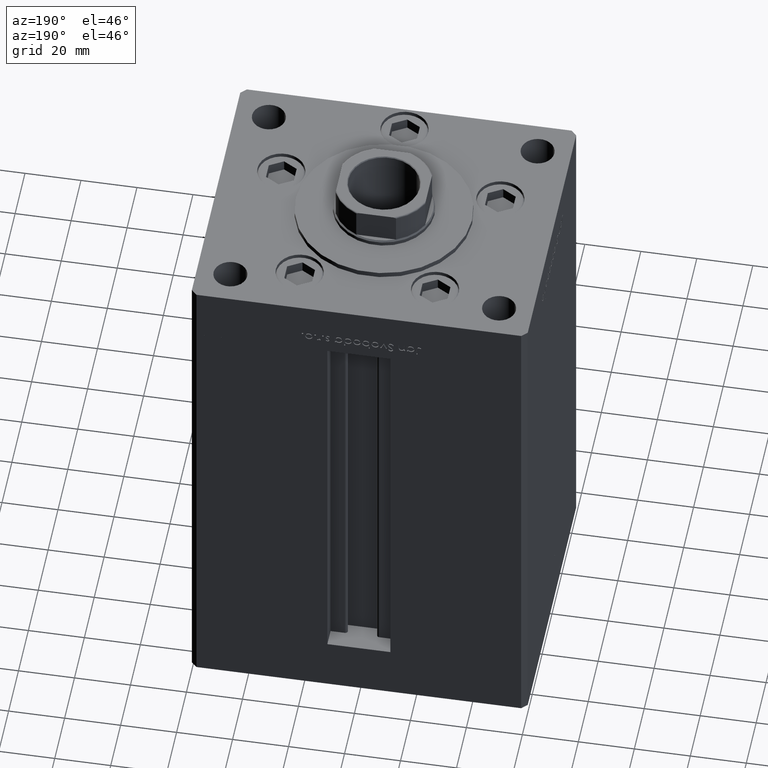
[diagram: clean part render]
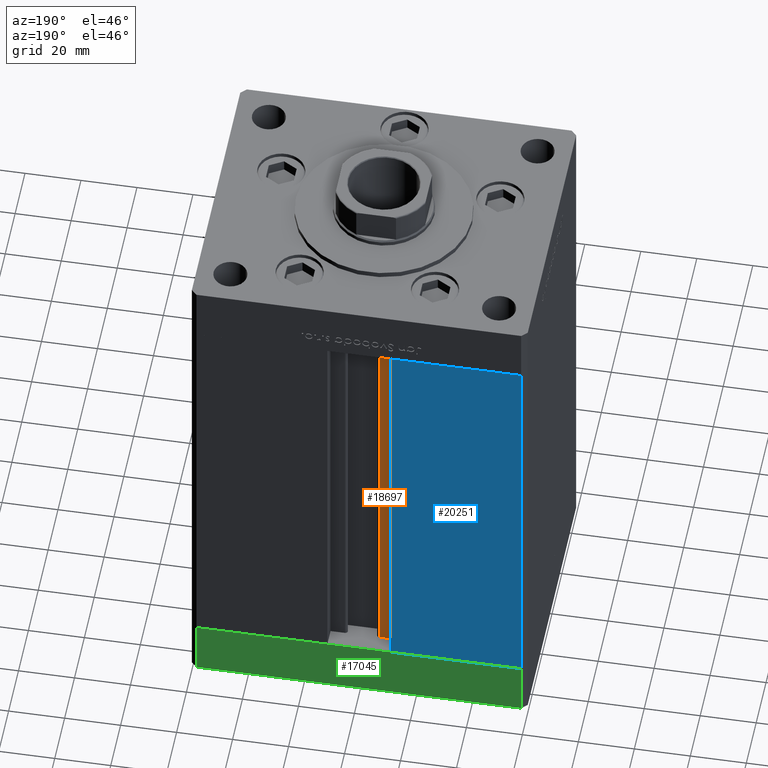
[diagram: same view with three faces highlighted in distinct colors, each labeled with its STEP entity id]
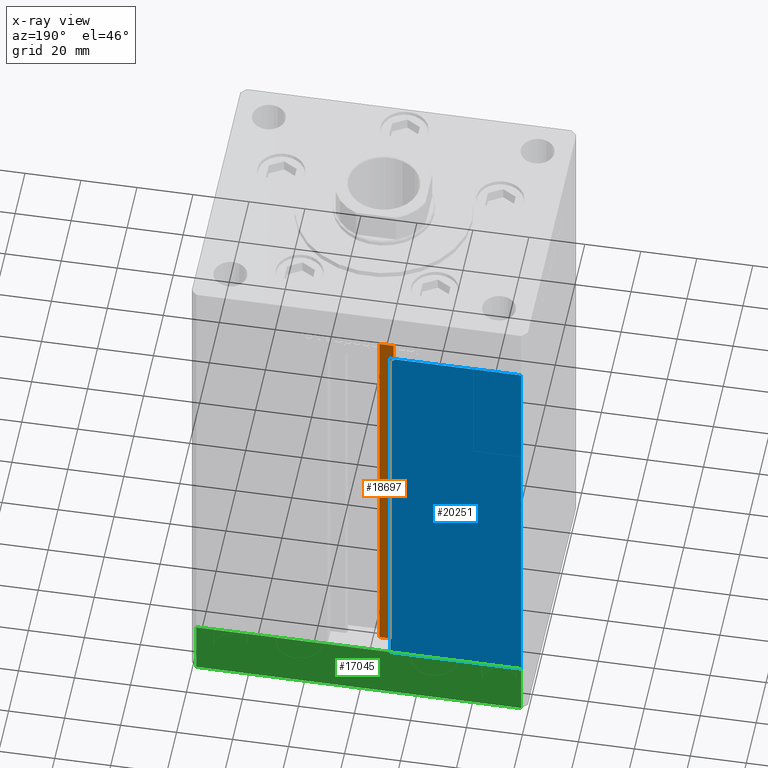
[diagram: x-ray of the same camera — body ghosted, the three highlighted faces saturated]
A machine part, auxiliary view with three faces highlighted in distinct colors.
The next image is the same camera in x-ray (body ghosted, the three faces saturated) — at least one of them is partly hidden behind the body in this view.
Their STEP definitions:

[orange] entity #18697 — the highlighted planar face has unit normal (0, -1, 0).
#4002 = ORIENTED_EDGE ( 'NONE', *, *, #5833, .F. ) ;
#4031 = VECTOR ( 'NONE', #14339, 1000.000000000000000 ) ;
#5833 = EDGE_CURVE ( 'NONE', #12939, #45568, #36048, .T. ) ;
#7660 = DIRECTION ( 'NONE',  ( -0.000000000000000000, -0.000000000000000000, 1.000000000000000000 ) ) ;
#9607 = LINE ( 'NONE', #17516, #4031 ) ;
#10157 = VERTEX_POINT ( 'NONE', #21669 ) ;
#10315 = EDGE_CURVE ( 'NONE', #10157, #12939, #40088, .T. ) ;
#12939 = VERTEX_POINT ( 'NONE', #43718 ) ;
#13820 = VERTEX_POINT ( 'NONE', #31919 ) ;
#14339 = DIRECTION ( 'NONE',  ( 1.000000000000000000, -0.000000000000000000, -0.000000000000000000 ) ) ;
#15793 = CARTESIAN_POINT ( 'NONE',  ( -6.183333333334001480, 44.50000000000000000, 0.000000000000000000 ) ) ;
#16099 = CARTESIAN_POINT ( 'NONE',  ( -6.183333333334001480, 44.50000000000000000, 0.000000000000000000 ) ) ;
#17239 = LINE ( 'NONE', #25397, #36819 ) ;
#17516 = CARTESIAN_POINT ( 'NONE',  ( -6.183333333334001480, 44.50000000000000000, 0.000000000000000000 ) ) ;
#18079 = AXIS2_PLACEMENT_3D ( 'NONE', #15793, #43730, #27914 ) ;
#18697 = ADVANCED_FACE ( 'NONE', ( #27126 ), #23695, .F. ) ;
#18828 = VECTOR ( 'NONE', #7660, 1000.000000000000000 ) ;
#21669 = CARTESIAN_POINT ( 'NONE',  ( -6.183333333334001480, 44.50000000000000000, 0.000000000000000000 ) ) ;
#22140 = ORIENTED_EDGE ( 'NONE', *, *, #25592, .T. ) ;
#23271 = CARTESIAN_POINT ( 'NONE',  ( -11.25000000000000178, 44.50000000000000000, 148.5000000000000000 ) ) ;
#23695 = PLANE ( 'NONE',  #18079 ) ;
#25397 = CARTESIAN_POINT ( 'NONE',  ( -11.25000000000000178, 44.50000000000000000, 0.000000000000000000 ) ) ;
#25592 = EDGE_CURVE ( 'NONE', #13820, #45568, #17239, .T. ) ;
#27126 = FACE_OUTER_BOUND ( 'NONE', #37204, .T. ) ;
#27490 = EDGE_CURVE ( 'NONE', #13820, #10157, #9607, .T. ) ;
#27914 = DIRECTION ( 'NONE',  ( 0.000000000000000000, 0.000000000000000000, -1.000000000000000000 ) ) ;
#31919 = CARTESIAN_POINT ( 'NONE',  ( -11.25000000000000178, 44.50000000000000000, 0.000000000000000000 ) ) ;
#32354 = DIRECTION ( 'NONE',  ( -1.000000000000000000, 0.000000000000000000, 0.000000000000000000 ) ) ;
#33305 = DIRECTION ( 'NONE',  ( -0.000000000000000000, -0.000000000000000000, 1.000000000000000000 ) ) ;
#36048 = LINE ( 'NONE', #40262, #50694 ) ;
#36819 = VECTOR ( 'NONE', #33305, 1000.000000000000000 ) ;
#37204 = EDGE_LOOP ( 'NONE', ( #39266, #40564, #22140, #4002 ) ) ;
#39266 = ORIENTED_EDGE ( 'NONE', *, *, #10315, .F. ) ;
#40088 = LINE ( 'NONE', #16099, #18828 ) ;
#40262 = CARTESIAN_POINT ( 'NONE',  ( 0.000000000000000000, 44.50000000000000000, 148.5000000000000000 ) ) ;
#40564 = ORIENTED_EDGE ( 'NONE', *, *, #27490, .F. ) ;
#43718 = CARTESIAN_POINT ( 'NONE',  ( -6.183333333334001480, 44.50000000000000000, 148.5000000000000000 ) ) ;
#43730 = DIRECTION ( 'NONE',  ( 0.000000000000000000, -1.000000000000000000, -0.000000000000000000 ) ) ;
#45568 = VERTEX_POINT ( 'NONE', #23271 ) ;
#50694 = VECTOR ( 'NONE', #32354, 1000.000000000000000 ) ;

[blue] entity #20251 — the highlighted planar face has unit normal (-0, -1, 0).
#2068 = EDGE_LOOP ( 'NONE', ( #8974, #16991, #2752, #23035 ) ) ;
#2728 = EDGE_CURVE ( 'NONE', #18817, #44428, #15545, .T. ) ;
#2752 = ORIENTED_EDGE ( 'NONE', *, *, #5445, .T. ) ;
#3921 = VECTOR ( 'NONE', #34971, 1000.000000000000000 ) ;
#5445 = EDGE_CURVE ( 'NONE', #29670, #44428, #33826, .T. ) ;
#6631 = CARTESIAN_POINT ( 'NONE',  ( -11.25000000000000178, 51.00000000000000000, 148.5000000000000000 ) ) ;
#8974 = ORIENTED_EDGE ( 'NONE', *, *, #12050, .T. ) ;
#12050 = EDGE_CURVE ( 'NONE', #18817, #21521, #20059, .T. ) ;
#14937 = LINE ( 'NONE', #27051, #3921 ) ;
#15067 = CARTESIAN_POINT ( 'NONE',  ( -11.25000000000000178, 51.00000000000000000, 148.5000000000000000 ) ) ;
#15545 = LINE ( 'NONE', #23434, #32136 ) ;
#16991 = ORIENTED_EDGE ( 'NONE', *, *, #23613, .F. ) ;
#18817 = VERTEX_POINT ( 'NONE', #20531 ) ;
#19806 = AXIS2_PLACEMENT_3D ( 'NONE', #6631, #50375, #22701 ) ;
#20059 = LINE ( 'NONE', #15067, #42466 ) ;
#20251 = ADVANCED_FACE ( 'NONE', ( #34309 ), #46693, .F. ) ;
#20531 = CARTESIAN_POINT ( 'NONE',  ( -57.99999999999999289, 51.00000000000000711, 148.5000000000000000 ) ) ;
#21521 = VERTEX_POINT ( 'NONE', #41336 ) ;
#22701 = DIRECTION ( 'NONE',  ( 1.000000000000000000, -1.484255380514915423E-16, 0.000000000000000000 ) ) ;
#23035 = ORIENTED_EDGE ( 'NONE', *, *, #2728, .F. ) ;
#23434 = CARTESIAN_POINT ( 'NONE',  ( -57.99999999999999289, 51.00000000000000711, 148.5000000000000000 ) ) ;
#23583 = CARTESIAN_POINT ( 'NONE',  ( -57.99999999999999289, 51.00000000000000711, 0.000000000000000000 ) ) ;
#23613 = EDGE_CURVE ( 'NONE', #29670, #21521, #14937, .T. ) ;
#24222 = DIRECTION ( 'NONE',  ( -0.000000000000000000, -0.000000000000000000, -1.000000000000000000 ) ) ;
#27051 = CARTESIAN_POINT ( 'NONE',  ( -11.25000000000000178, 51.00000000000000000, 0.000000000000000000 ) ) ;
#29349 = CARTESIAN_POINT ( 'NONE',  ( -11.25000000000000178, 51.00000000000000000, 0.000000000000000000 ) ) ;
#29611 = DIRECTION ( 'NONE',  ( -1.000000000000000000, 1.484255380514915423E-16, 0.000000000000000000 ) ) ;
#29670 = VERTEX_POINT ( 'NONE', #50164 ) ;
#32136 = VECTOR ( 'NONE', #24222, 1000.000000000000000 ) ;
#33826 = LINE ( 'NONE', #29349, #43970 ) ;
#34309 = FACE_OUTER_BOUND ( 'NONE', #2068, .T. ) ;
#34971 = DIRECTION ( 'NONE',  ( -0.000000000000000000, -0.000000000000000000, 1.000000000000000000 ) ) ;
#41336 = CARTESIAN_POINT ( 'NONE',  ( -11.25000000000000178, 51.00000000000000000, 148.5000000000000000 ) ) ;
#42466 = VECTOR ( 'NONE', #51424, 1000.000000000000000 ) ;
#43970 = VECTOR ( 'NONE', #29611, 1000.000000000000000 ) ;
#44428 = VERTEX_POINT ( 'NONE', #23583 ) ;
#46693 = PLANE ( 'NONE',  #19806 ) ;
#50164 = CARTESIAN_POINT ( 'NONE',  ( -11.25000000000000178, 51.00000000000000000, 0.000000000000000000 ) ) ;
#50375 = DIRECTION ( 'NONE',  ( -1.484255380514915423E-16, -1.000000000000000000, 0.000000000000000000 ) ) ;
#51424 = DIRECTION ( 'NONE',  ( 1.000000000000000000, 0.000000000000000000, 0.000000000000000000 ) ) ;

[green] entity #17045 — the highlighted planar face has unit normal (0, 1, 0).
#395 = AXIS2_PLACEMENT_3D ( 'NONE', #33729, #45590, #17915 ) ;
#1154 = DIRECTION ( 'NONE',  ( -1.000000000000000000, -2.392722035830079958E-16, 0.000000000000000000 ) ) ;
#1158 = VERTEX_POINT ( 'NONE', #10396 ) ;
#2252 = LINE ( 'NONE', #49977, #17935 ) ;
#3885 = EDGE_CURVE ( 'NONE', #1158, #18343, #26306, .T. ) ;
#5532 = PLANE ( 'NONE',  #395 ) ;
#7382 = VERTEX_POINT ( 'NONE', #8150 ) ;
#8150 = CARTESIAN_POINT ( 'NONE',  ( -57.99999999999999289, 50.99999999999997868, -20.00000000000000000 ) ) ;
#8272 = CARTESIAN_POINT ( 'NONE',  ( 57.99999999999993605, 51.00000000000000711, 0.000000000000000000 ) ) ;
#8811 = EDGE_CURVE ( 'NONE', #7382, #43218, #2252, .T. ) ;
#10396 = CARTESIAN_POINT ( 'NONE',  ( 57.99999999999993605, 51.00000000000000711, -20.00000000000000000 ) ) ;
#15352 = VECTOR ( 'NONE', #50288, 1000.000000000000000 ) ;
#17045 = ADVANCED_FACE ( 'NONE', ( #32945 ), #5532, .T. ) ;
#17915 = DIRECTION ( 'NONE',  ( -1.000000000000000000, -2.392722035830079958E-16, 0.000000000000000000 ) ) ;
#17935 = VECTOR ( 'NONE', #18341, 1000.000000000000000 ) ;
#18341 = DIRECTION ( 'NONE',  ( 0.000000000000000000, 0.000000000000000000, 1.000000000000000000 ) ) ;
#18343 = VERTEX_POINT ( 'NONE', #35096 ) ;
#18383 = ORIENTED_EDGE ( 'NONE', *, *, #44510, .T. ) ;
#19191 = EDGE_LOOP ( 'NONE', ( #23048, #28486, #18383, #37192 ) ) ;
#19459 = VECTOR ( 'NONE', #20159, 1000.000000000000000 ) ;
#20159 = DIRECTION ( 'NONE',  ( -1.000000000000000000, -2.392722035830079958E-16, 0.000000000000000000 ) ) ;
#23048 = ORIENTED_EDGE ( 'NONE', *, *, #42499, .F. ) ;
#24620 = CARTESIAN_POINT ( 'NONE',  ( -57.99999999999999289, 50.99999999999997868, 0.000000000000000000 ) ) ;
#26306 = LINE ( 'NONE', #26568, #15352 ) ;
#26568 = CARTESIAN_POINT ( 'NONE',  ( 57.99999999999993605, 51.00000000000000711, -20.00000000000000000 ) ) ;
#28486 = ORIENTED_EDGE ( 'NONE', *, *, #3885, .F. ) ;
#31978 = VECTOR ( 'NONE', #1154, 1000.000000000000000 ) ;
#32945 = FACE_OUTER_BOUND ( 'NONE', #19191, .T. ) ;
#33044 = LINE ( 'NONE', #8272, #31978 ) ;
#33729 = CARTESIAN_POINT ( 'NONE',  ( 57.99999999999993605, 51.00000000000000711, -20.00000000000000000 ) ) ;
#35096 = CARTESIAN_POINT ( 'NONE',  ( 57.99999999999993605, 51.00000000000000711, 0.000000000000000000 ) ) ;
#37192 = ORIENTED_EDGE ( 'NONE', *, *, #8811, .T. ) ;
#42499 = EDGE_CURVE ( 'NONE', #18343, #43218, #33044, .T. ) ;
#43218 = VERTEX_POINT ( 'NONE', #24620 ) ;
#44510 = EDGE_CURVE ( 'NONE', #1158, #7382, #44657, .T. ) ;
#44657 = LINE ( 'NONE', #49143, #19459 ) ;
#45590 = DIRECTION ( 'NONE',  ( -2.392722035830079958E-16, 1.000000000000000000, 0.000000000000000000 ) ) ;
#49143 = CARTESIAN_POINT ( 'NONE',  ( 57.99999999999993605, 51.00000000000000711, -20.00000000000000000 ) ) ;
#49977 = CARTESIAN_POINT ( 'NONE',  ( -57.99999999999999289, 50.99999999999997868, -20.00000000000000000 ) ) ;
#50288 = DIRECTION ( 'NONE',  ( 0.000000000000000000, 0.000000000000000000, 1.000000000000000000 ) ) ;